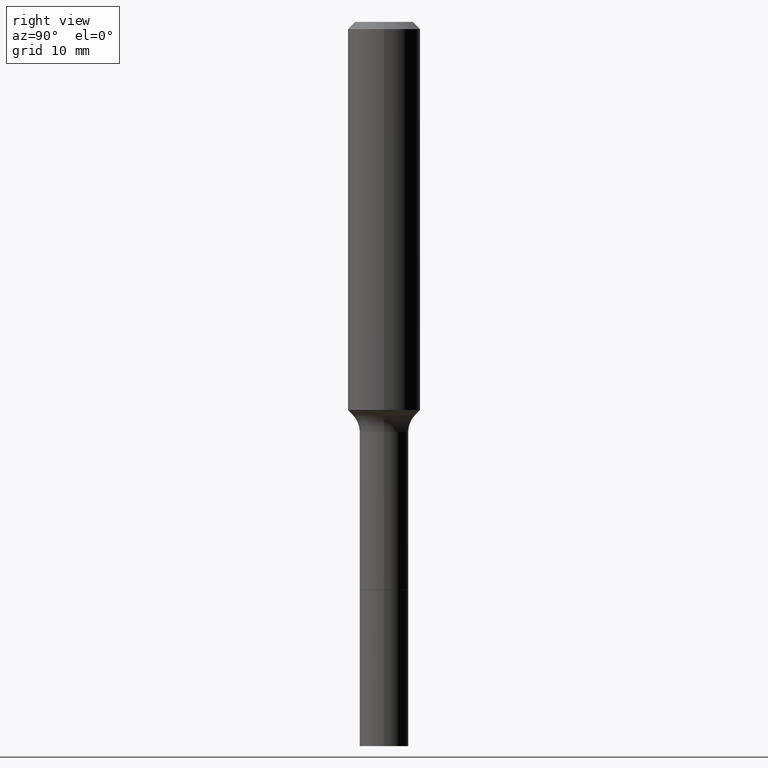
[diagram: clean part render]
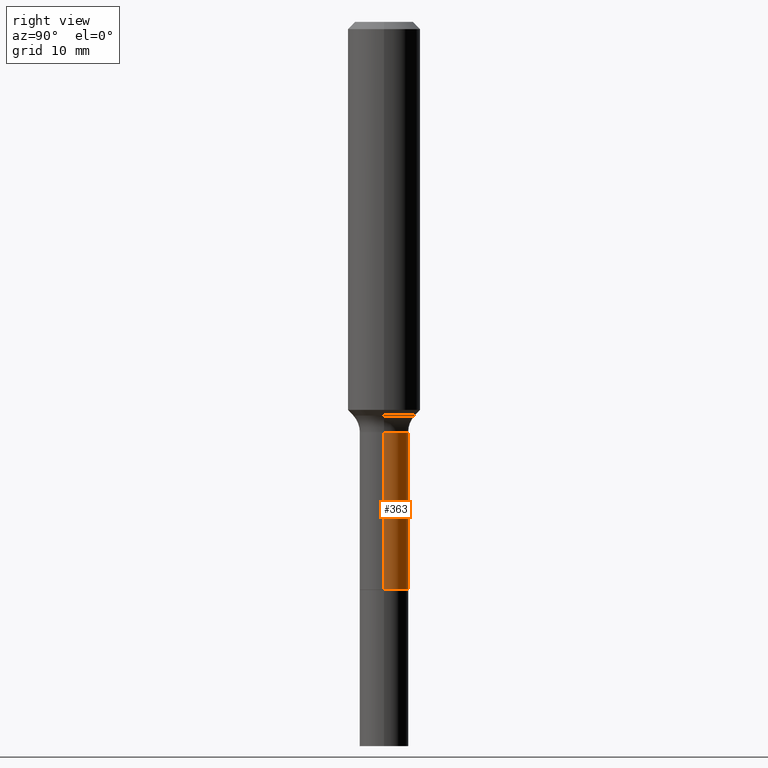
[diagram: same view with one face highlighted and labeled with its STEP entity id]
A machine part, right view. The second image highlights one B-rep face of the part: STEP entity #363.
In plain terms, the highlighted cylindrical surface (edge-blend (fillet) strip) has radius 2.0193 mm, axis along (-0, 0, 1).
Its self-contained STEP definition (entity closure, byte-faithful):
#2 = EDGE_CURVE ( 'NONE', #471, #511, #509, .T. ) ;
#13 = CARTESIAN_POINT ( 'NONE',  ( 3.272526356436949336E-29, -4.672300327639896745E-15, -1.338200000000000056 ) ) ;
#16 = AXIS2_PLACEMENT_3D ( 'NONE', #478, #122, #83 ) ;
#22 = CIRCLE ( 'NONE', #425, 0.07950000000000000122 ) ;
#78 = CARTESIAN_POINT ( 'NONE',  ( 0.07950000000000000122, -7.020321528011911342E-15, -1.851700000000000124 ) ) ;
#83 = DIRECTION ( 'NONE',  ( 1.000000000000000000, -6.982962677686267499E-15, 4.876176775795936353E-29 ) ) ;
#96 = DIRECTION ( 'NONE',  ( 1.000000000000000000, -6.982962677686272233E-15, 0.000000000000000000 ) ) ;
#122 = DIRECTION ( 'NONE',  ( -2.445468806185136597E-29, 3.491481338843145583E-15, 1.000000000000000000 ) ) ;
#126 = DIRECTION ( 'NONE',  ( -2.445468806185136877E-29, 3.491481338843145188E-15, 1.000000000000000000 ) ) ;
#137 = CARTESIAN_POINT ( 'NONE',  ( 4.528274588413018229E-29, -6.465175995135853485E-15, -1.851700000000000124 ) ) ;
#143 = LINE ( 'NONE', #424, #200 ) ;
#152 = CARTESIAN_POINT ( 'NONE',  ( -0.07949999999999995959, 5.648814749292793606E-16, -3.910553396752648025E-30 ) ) ;
#179 = EDGE_CURVE ( 'NONE', #240, #435, #143, .T. ) ;
#182 = VECTOR ( 'NONE', #126, 39.37007874015748143 ) ;
#191 = DIRECTION ( 'NONE',  ( -2.445468806185136877E-29, 3.491481338843145188E-15, 1.000000000000000000 ) ) ;
#200 = VECTOR ( 'NONE', #191, 39.37007874015748143 ) ;
#203 = CYLINDRICAL_SURFACE ( 'NONE', #16, 0.07949999999999995959 ) ;
#224 = ORIENTED_EDGE ( 'NONE', *, *, #401, .T. ) ;
#240 = VERTEX_POINT ( 'NONE', #78 ) ;
#261 = ORIENTED_EDGE ( 'NONE', *, *, #420, .F. ) ;
#296 = AXIS2_PLACEMENT_3D ( 'NONE', #13, #494, #96 ) ;
#302 = DIRECTION ( 'NONE',  ( -2.445468806185136597E-29, 3.491481338843145583E-15, 1.000000000000000000 ) ) ;
#313 = EDGE_LOOP ( 'NONE', ( #224, #474, #261, #343 ) ) ;
#328 = CARTESIAN_POINT ( 'NONE',  ( -0.07950000000000000122, -5.003856686458594966E-15, -1.851700000000000124 ) ) ;
#339 = CARTESIAN_POINT ( 'NONE',  ( 0.07949999999999993183, -5.227445860515954601E-15, -1.338200000000000056 ) ) ;
#343 = ORIENTED_EDGE ( 'NONE', *, *, #179, .F. ) ;
#363 = ADVANCED_FACE ( 'NONE', ( #437 ), #203, .T. ) ;
#401 = EDGE_CURVE ( 'NONE', #240, #471, #22, .T. ) ;
#420 = EDGE_CURVE ( 'NONE', #435, #511, #496, .T. ) ;
#424 = CARTESIAN_POINT ( 'NONE',  ( 0.07949999999999995959, -5.551455328760579550E-16, 3.876560536757767470E-30 ) ) ;
#425 = AXIS2_PLACEMENT_3D ( 'NONE', #137, #302, #487 ) ;
#435 = VERTEX_POINT ( 'NONE', #339 ) ;
#437 = FACE_OUTER_BOUND ( 'NONE', #313, .T. ) ;
#471 = VERTEX_POINT ( 'NONE', #328 ) ;
#474 = ORIENTED_EDGE ( 'NONE', *, *, #2, .T. ) ;
#478 = CARTESIAN_POINT ( 'NONE',  ( 0.000000000000000000, 0.000000000000000000, 0.000000000000000000 ) ) ;
#485 = CARTESIAN_POINT ( 'NONE',  ( -0.07949999999999993183, -5.003856686458595754E-15, -1.338200000000000056 ) ) ;
#487 = DIRECTION ( 'NONE',  ( 1.000000000000000000, -6.982962677686265922E-15, 0.000000000000000000 ) ) ;
#494 = DIRECTION ( 'NONE',  ( -2.445468806185136597E-29, 3.491481338843145583E-15, 1.000000000000000000 ) ) ;
#496 = CIRCLE ( 'NONE', #296, 0.07949999999999993183 ) ;
#509 = LINE ( 'NONE', #152, #182 ) ;
#511 = VERTEX_POINT ( 'NONE', #485 ) ;